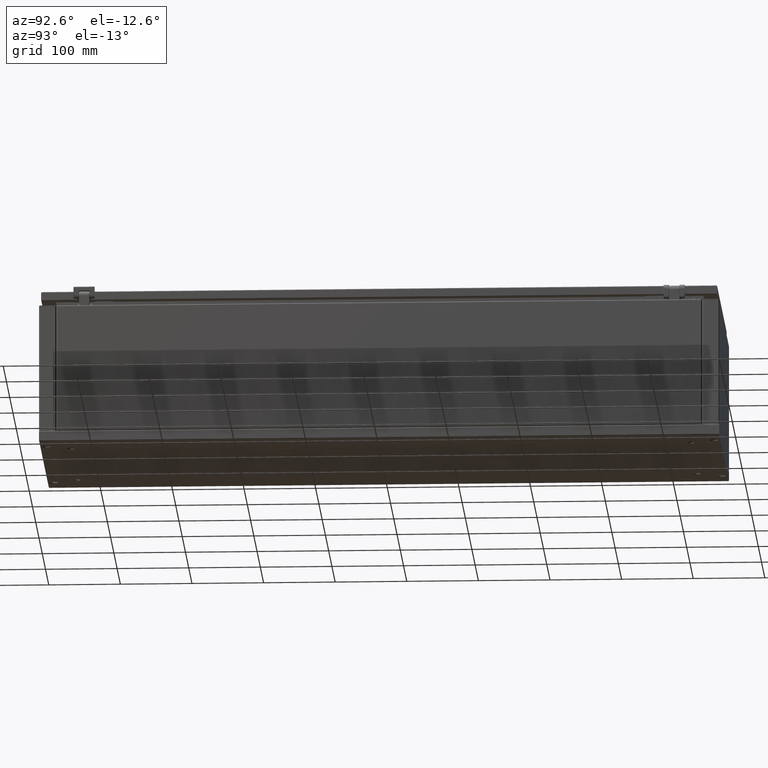
[diagram: clean part render]
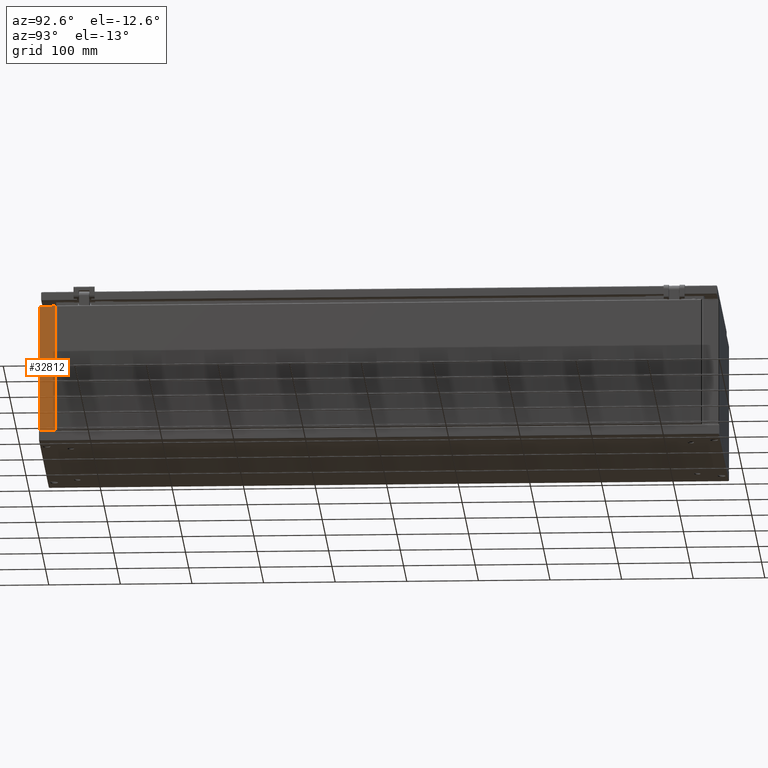
[diagram: same view with one face highlighted and labeled with its STEP entity id]
A machine part, auxiliary view. The second image highlights one B-rep face of the part: STEP entity #32812.
In plain terms, the highlighted planar face has unit normal (-1, 0, -0).
Its self-contained STEP definition (entity closure, byte-faithful):
#249 = DIRECTION ( 'NONE',  ( 4.758702732461060000E-015, 1.000000000000000000, 2.590653507537594600E-017 ) ) ;
#649 = DIRECTION ( 'NONE',  ( 4.761837324575670700E-015, 1.000000000000000000, 6.811850489649800500E-015 ) ) ;
#4578 = VECTOR ( 'NONE', #649, 1000.000000000000000 ) ;
#6302 = CARTESIAN_POINT ( 'NONE',  ( 150.0000000000000000, -473.5000000000000000, 191.8999999999999800 ) ) ;
#14414 = CARTESIAN_POINT ( 'NONE',  ( 150.0000000000000000, -452.6000000000000200, 14.00000000000000000 ) ) ;
#14739 = VERTEX_POINT ( 'NONE', #65554 ) ;
#15076 = CARTESIAN_POINT ( 'NONE',  ( 150.0000000000000000, -474.0000000000000000, 15.50000000000000000 ) ) ;
#15979 = DIRECTION ( 'NONE',  ( -4.310270819504185500E-015, -1.000000000000000000, -3.491481336412970400E-015 ) ) ;
#18237 = CARTESIAN_POINT ( 'NONE',  ( 150.0000000000000000, -473.5000000000000000, 191.5000000000000000 ) ) ;
#22856 = EDGE_CURVE ( 'NONE', #14739, #41902, #76261, .T. ) ;
#25009 = CARTESIAN_POINT ( 'NONE',  ( 150.0000000000000000, -452.6000000000000200, 191.8999999999999800 ) ) ;
#26985 = LINE ( 'NONE', #18237, #83354 ) ;
#30048 = VERTEX_POINT ( 'NONE', #63151 ) ;
#30327 = EDGE_LOOP ( 'NONE', ( #47168, #65161, #84648, #64999 ) ) ;
#32254 = FACE_OUTER_BOUND ( 'NONE', #30327, .T. ) ;
#32812 = ADVANCED_FACE ( 'NONE', ( #32254 ), #63872, .F. ) ;
#34812 = CARTESIAN_POINT ( 'NONE',  ( 150.0000000000000000, -452.6000000000000200, 14.00000000000000000 ) ) ;
#38348 = AXIS2_PLACEMENT_3D ( 'NONE', #15076, #70682, #15979 ) ;
#40118 = VECTOR ( 'NONE', #249, 1000.000000000000000 ) ;
#41554 = CARTESIAN_POINT ( 'NONE',  ( 150.0000000000000000, -473.5000000000000000, 14.00000000000000000 ) ) ;
#41902 = VERTEX_POINT ( 'NONE', #14414 ) ;
#44428 = EDGE_CURVE ( 'NONE', #14739, #30048, #26985, .T. ) ;
#45949 = DIRECTION ( 'NONE',  ( -4.023572721128125300E-025, -3.491481336412970400E-015, 1.000000000000000000 ) ) ;
#45988 = EDGE_CURVE ( 'NONE', #30048, #84429, #51419, .T. ) ;
#47168 = ORIENTED_EDGE ( 'NONE', *, *, #87512, .T. ) ;
#51419 = LINE ( 'NONE', #6302, #4578 ) ;
#63151 = CARTESIAN_POINT ( 'NONE',  ( 150.0000000000000000, -473.5000000000000000, 191.8999999999999800 ) ) ;
#63872 = PLANE ( 'NONE',  #38348 ) ;
#64443 = LINE ( 'NONE', #34812, #71849 ) ;
#64999 = ORIENTED_EDGE ( 'NONE', *, *, #22856, .T. ) ;
#65161 = ORIENTED_EDGE ( 'NONE', *, *, #45988, .F. ) ;
#65554 = CARTESIAN_POINT ( 'NONE',  ( 150.0000000000000000, -473.5000000000000000, 14.00000000000000000 ) ) ;
#70682 = DIRECTION ( 'NONE',  ( -1.000000000000000000, 4.310270819504185500E-015, -4.023422693701270200E-025 ) ) ;
#71849 = VECTOR ( 'NONE', #74995, 1000.000000000000000 ) ;
#74995 = DIRECTION ( 'NONE',  ( -4.023572721128125300E-025, -3.491481336412970400E-015, 1.000000000000000000 ) ) ;
#76261 = LINE ( 'NONE', #41554, #40118 ) ;
#83354 = VECTOR ( 'NONE', #45949, 1000.000000000000000 ) ;
#84429 = VERTEX_POINT ( 'NONE', #25009 ) ;
#84648 = ORIENTED_EDGE ( 'NONE', *, *, #44428, .F. ) ;
#87512 = EDGE_CURVE ( 'NONE', #41902, #84429, #64443, .T. ) ;